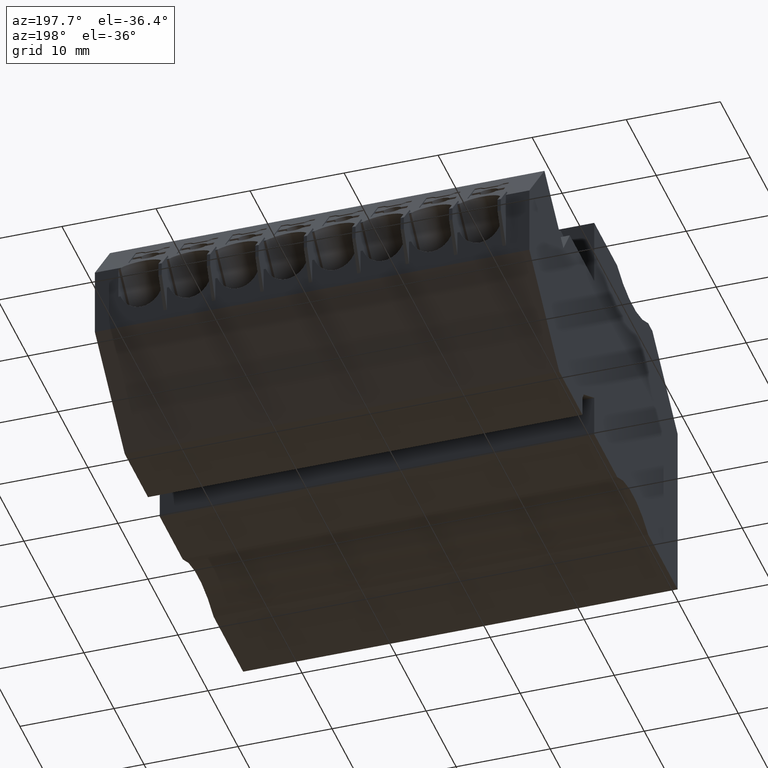
[diagram: clean part render]
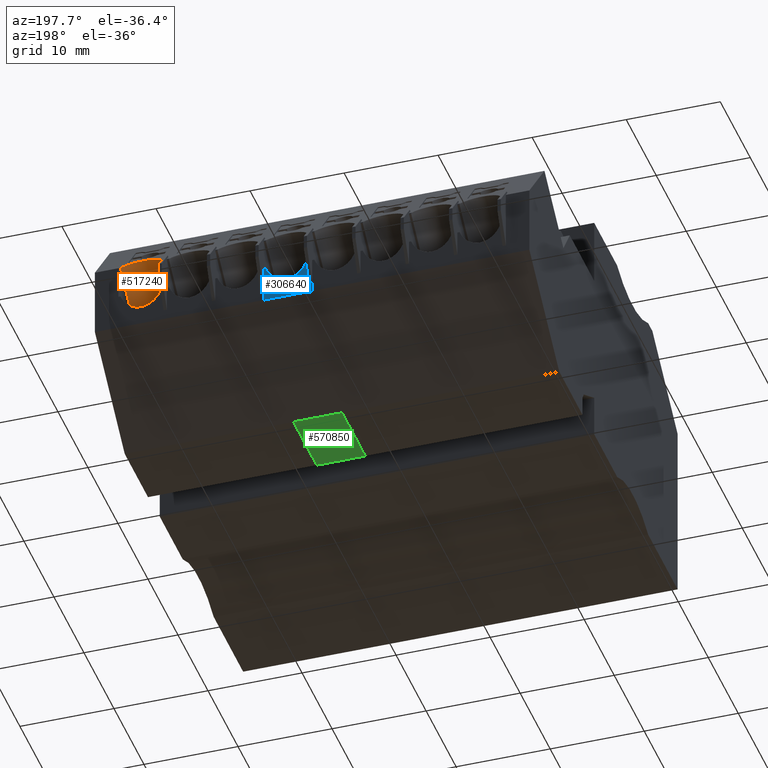
[diagram: same view with three faces highlighted in distinct colors, each labeled with its STEP entity id]
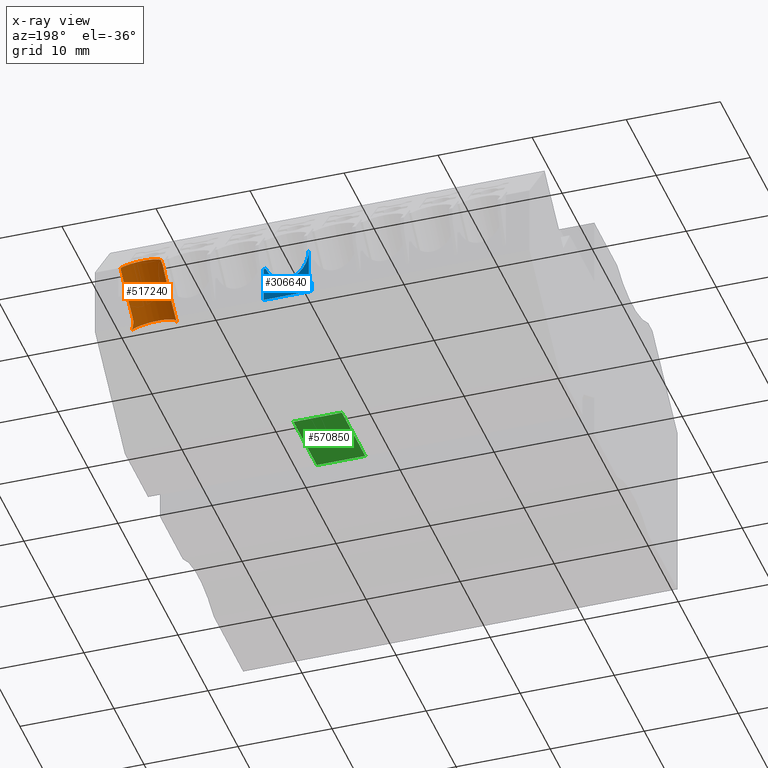
[diagram: x-ray of the same camera — body ghosted, the three highlighted faces saturated]
A machine part, auxiliary view with three faces highlighted in distinct colors.
The next image is the same camera in x-ray (body ghosted, the three faces saturated) — at least one of them is partly hidden behind the body in this view.
Their STEP definitions:

[orange] entity #517240 — the highlighted cylindrical surface (edge-blend (fillet) strip) has radius 2.4 mm, axis along (-0, -0.766, -0.6428).
#213950=CARTESIAN_POINT('',(469.853158772773,686.448039207543,
104.797257720839));
#213960=VERTEX_POINT('',#213950);
#213990=CARTESIAN_POINT('',(470.572956144025,685.590218103947,
106.919999979944));
#214000=DIRECTION('',(-0.766044443609541,-0.642787609101909,
4.36973645764363E-10));
#214010=DIRECTION('',(-0.642787609101909,0.766044443609542,
-3.23562025759873E-10));
#214020=AXIS2_PLACEMENT_3D('',#213990,#214000,#214010);
#214030=CIRCLE('',#214020,2.40000000000534);
#214040=CARTESIAN_POINT('',(469.853158772674,686.448039209318,
109.042742238297));
#214050=VERTEX_POINT('',#214040);
#214060=EDGE_CURVE('',#214050,#213960,#214030,.T.);
#244950=CARTESIAN_POINT('',(467.092890171759,684.014665542837,
109.087740740596));
#244960=DIRECTION('',(-0.766044443609541,-0.642787609101909,
4.36973645764363E-10));
#244970=VECTOR('',#244960,1.);
#244980=LINE('',#244950,#244970);
#244990=CARTESIAN_POINT('',(469.853158772521,686.330805904065,
109.087740739022));
#245000=VERTEX_POINT('',#244990);
#245010=CARTESIAN_POINT('',(465.743894971929,682.882724169986,
109.087740741354));
#245020=VERTEX_POINT('',#245010);
#245030=EDGE_CURVE('',#245000,#245020,#244980,.T.);
#281810=CARTESIAN_POINT('',(464.396383041171,680.407457899573,
106.919999983416));
#281820=DIRECTION('',(0.766044443617047,0.642787609092964,
-4.36836570012142E-10));
#281830=DIRECTION('',(-0.64278760909295,0.766044443617064,
-3.23765527076768E-10));
#281840=AXIS2_PLACEMENT_3D('',#281810,#281820,#281830);
#281850=CONICAL_SURFACE('',#281840,1.4398990952349,0.523598775598288);
#464120=CARTESIAN_POINT('',(466.42114118545,682.106431698036,
109.419999981394));
#464130=DIRECTION('',(-2.80146045982863E-10,-5.85936008036318E-10,-1.));
#464140=DIRECTION('',(0.642787609095202,-0.766044443615169,
2.68778915406435E-10));
#464150=AXIS2_PLACEMENT_3D('',#464120,#464130,#464140);
#464160=CYLINDRICAL_SURFACE('',#464150,1.030190485256);
#464170=CARTESIAN_POINT('',(467.754961408907,683.225639764715,
106.919999981551));
#464180=DIRECTION('',(-0.766044443609543,-0.642787609101911,
4.36973645764364E-10));
#464190=DIRECTION('',(-0.642787609101911,0.766044443609544,
-3.23562025759874E-10));
#464200=AXIS2_PLACEMENT_3D('',#464170,#464180,#464190);
#464210=CYLINDRICAL_SURFACE('',#464200,2.40000000000534);
#464220=CARTESIAN_POINT('',(465.743894971929,682.882724169987,
109.087740741354));
#464230=CARTESIAN_POINT('',(465.733728207156,682.873854570972,
109.087864012428));
#464240=CARTESIAN_POINT('',(465.723750200214,682.864797746441,
109.088113082004));
#464250=CARTESIAN_POINT('',(465.713972001915,682.855567321011,
109.088485667793));
#464260=CARTESIAN_POINT('',(465.704199147334,682.846341939945,
109.088858049967));
#464270=CARTESIAN_POINT('',(465.694604769445,682.836923686184,
109.089354449609));
#464280=CARTESIAN_POINT('',(465.685183533552,682.827305314131,
109.089974469727));
#464290=CARTESIAN_POINT('',(465.666343759506,682.808071324214,
109.091214332421));
#464300=CARTESIAN_POINT('',(465.648223432893,682.788060741876,
109.092948848292));
#464310=CARTESIAN_POINT('',(465.630918061213,682.767370310711,
109.095152591251));
#464320=CARTESIAN_POINT('',(465.613612831993,682.746680049873,
109.097356316069));
#464330=CARTESIAN_POINT('',(465.597125116398,682.725312847451,
109.100028840885));
#464340=CARTESIAN_POINT('',(465.581534302419,682.70338455866,
109.103123492074));
#464350=CARTESIAN_POINT('',(465.565943441984,682.681456204527,
109.106218152484));
#464360=CARTESIAN_POINT('',(465.55125143248,682.658969697822,
109.109734257482));
#464370=CARTESIAN_POINT('',(465.537514450315,682.636050644853,
109.113608009978));
#464380=CARTESIAN_POINT('',(465.530646010778,682.624591204369,
109.115544871691));
#464390=CARTESIAN_POINT('',(465.524016099454,682.613023978936,
109.117570869905));
#464400=CARTESIAN_POINT('',(465.517629410692,682.601364934709,
109.119676893044));
#464410=CARTESIAN_POINT('',(465.511243612672,682.589707516551,
109.121782622459));
#464420=CARTESIAN_POINT('',(465.505101000703,682.577960227706,
109.123967796765));
#464430=CARTESIAN_POINT('',(465.499176143506,682.566076014153,
109.126235353396));
#464440=CARTESIAN_POINT('',(465.487330847281,682.542316449109,
109.130768775741));
#464450=CARTESIAN_POINT('',(465.476399701899,682.518087739902,
109.135617794183));
#464460=CARTESIAN_POINT('',(465.466425777142,682.493485861009,
109.140714398695));
#464470=CARTESIAN_POINT('',(465.456451900145,682.468884099921,
109.145810978802));
#464480=CARTESIAN_POINT('',(465.447435964976,682.44391081162,
109.151154606471));
#464490=CARTESIAN_POINT('',(465.439408023254,682.418669482753,
109.156670033721));
#464500=CARTESIAN_POINT('',(465.43138007145,682.393428122186,
109.162185467898));
#464510=CARTESIAN_POINT('',(465.424340589368,682.367920304862,
109.167872143493));
#464520=CARTESIAN_POINT('',(465.418304646563,682.342252206593,
109.173651713742));
#464530=CARTESIAN_POINT('',(465.412266422104,682.316574405492,
109.179433468733));
#464540=CARTESIAN_POINT('',(465.407239446429,682.290779853169,
109.185298066584));
#464550=CARTESIAN_POINT('',(465.403204308529,682.264851869112,
109.191195636584));
#464560=CARTESIAN_POINT('',(465.399165436076,682.238899888498,
109.197098664833));
#464570=CARTESIAN_POINT('',(465.396110727838,682.21273335,
109.203053291101));
#464580=CARTESIAN_POINT('',(465.394062990505,682.186449305364,
109.208984895443));
#464590=CARTESIAN_POINT('',(465.392015261195,682.160165363728,
109.21491647654));
#464600=CARTESIAN_POINT('',(465.390974673753,682.133765303392,
109.220824560842));
#464610=CARTESIAN_POINT('',(465.390951110046,682.107350700906,
109.226635417984));
#464620=CARTESIAN_POINT('',(465.390927546313,682.080936069259,
109.23244628154));
#464630=CARTESIAN_POINT('',(465.391921009374,682.054508377321,
109.238159447492));
#464640=CARTESIAN_POINT('',(465.393927742859,682.028169450482,
109.243705352795));
#464650=CARTESIAN_POINT('',(465.395934719275,682.001827335113,
109.249251929472));
#464660=CARTESIAN_POINT('',(465.398953033203,681.975588654542,
109.254628176613));
#464670=CARTESIAN_POINT('',(465.402971754528,681.949513101404,
109.259779070784));
#464680=CARTESIAN_POINT('',(465.406993880923,681.923415454401,
109.264934329316));
#464690=CARTESIAN_POINT('',(465.412036733025,681.897369677964,
109.269885706934));
#464700=CARTESIAN_POINT('',(465.418097481898,681.871493908825,
109.274567388576));
#464710=CARTESIAN_POINT('',(465.424158214579,681.845618208814,
109.27924905771));
#464720=CARTESIAN_POINT('',(465.431236396112,681.819914748967,
109.28366047351));
#464730=CARTESIAN_POINT('',(465.439310236021,681.794501541147,
109.287744344041));
#464740=CARTESIAN_POINT('',(465.447384117867,681.769088201323,
109.291828235784));
#464750=CARTESIAN_POINT('',(465.456452858071,681.743967458812,
109.295584113308));
#464760=CARTESIAN_POINT('',(465.46647757327,681.719249798134,
109.298966345033));
#464770=B_SPLINE_CURVE_WITH_KNOTS('',3,(#464220,#464230,#464240,#464250,
#464260,#464270,#464280,#464290,#464300,#464310,#464320,#464330,#464340,
#464350,#464360,#464370,#464380,#464390,#464400,#464410,#464420,#464430,
#464440,#464450,#464460,#464470,#464480,#464490,#464500,#464510,#464520,
#464530,#464540,#464550,#464560,#464570,#464580,#464590,#464600,#464610,
#464620,#464630,#464640,#464650,#464660,#464670,#464680,#464690,#464700,
#464710,#464720,#464730,#464740,#464750,#464760),.UNSPECIFIED.,.F.,.F.,(
4,3,3,3,3,3,3,3,3,3,3,3,3,3,3,3,3,3,4),(0.,0.0404189289107439,
0.0807920273016124,0.161834032942967,0.243077001978238,0.32422683781065,
0.364669004795785,0.405030638602536,0.485993291710387,0.567143228697407,
0.648238819222331,0.729045233551824,0.80997751701114,0.891100341142666,
0.972174763870472,1.05298427384281,1.1338409150178,1.21480330436631,
1.29561422931445),.UNSPECIFIED.);
#464780=SURFACE_CURVE('',#464770,(#464210,#464160),.CURVE_3D.);
#464790=CARTESIAN_POINT('',(465.466477573293,681.719249798076,
109.298966345041));
#464800=VERTEX_POINT('',#464790);
#464810=EDGE_CURVE('',#245020,#464800,#464780,.T.);
#507490=CARTESIAN_POINT('',(469.853158770717,684.986236393453,
104.519999980361));
#507500=VERTEX_POINT('',#507490);
#507530=CARTESIAN_POINT('',(469.853158770505,684.98623639424,
106.919999980354));
#507540=DIRECTION('',(-1.,1.34569982934711E-9,9.53016587669485E-11));
#507550=DIRECTION('',(-1.3456997738356E-9,-1.,5.66234217872408E-10));
#507560=AXIS2_PLACEMENT_3D('',#507530,#507540,#507550);
#507570=ELLIPSE('',#507560,3.13297749593582,2.40000000000534);
#507580=EDGE_CURVE('',#213960,#507500,#507570,.T.);
#515140=ORIENTED_EDGE('',*,*,#464810,.T.);
#515150=ORIENTED_EDGE('',*,*,#245030,.T.);
#515160=EDGE_CURVE('',#245000,#214050,#507570,.T.);
#515170=ORIENTED_EDGE('',*,*,#515160,.F.);
#515180=ORIENTED_EDGE('',*,*,#214060,.F.);
#515190=ORIENTED_EDGE('',*,*,#507580,.F.);
#515200=CARTESIAN_POINT('',(467.754961408579,683.225639763475,
104.519999981546));
#515210=DIRECTION('',(-0.766044443609542,-0.64278760910191,
4.36973645764364E-10));
#515220=VECTOR('',#515210,1.);
#515230=LINE('',#515200,#515220);
#515240=CARTESIAN_POINT('',(465.670271705414,681.476377405141,
104.519999982753));
#515250=VERTEX_POINT('',#515240);
#515260=EDGE_CURVE('',#507500,#515250,#515230,.T.);
#515270=ORIENTED_EDGE('',*,*,#515260,.F.);
#515280=CARTESIAN_POINT('',(465.670271705345,681.476377405211,
104.519999982735));
#515290=CARTESIAN_POINT('',(465.644124575646,681.507538341011,
104.519999982724));
#515300=CARTESIAN_POINT('',(465.617935382899,681.5387494056,
104.521034810444));
#515310=CARTESIAN_POINT('',(465.591754537893,681.56995052174,
104.52311051377));
#515320=CARTESIAN_POINT('',(465.565573743175,681.601151577948,
104.525186213108));
#515330=CARTESIAN_POINT('',(465.539401690819,681.632342215417,
104.528302785745));
#515340=CARTESIAN_POINT('',(465.51328996556,681.663460957851,
104.532458050533));
#515350=CARTESIAN_POINT('',(465.48717825511,681.694579682638,
104.536613312966));
#515360=CARTESIAN_POINT('',(465.461127271872,681.725626035551,
104.541807212466));
#515370=CARTESIAN_POINT('',(465.435188476863,681.75653868774,
104.548029170957));
#515380=CARTESIAN_POINT('',(465.409249662053,681.787451363526,
104.554251134197));
#515390=CARTESIAN_POINT('',(465.383423430715,681.818229867557,
104.561501049982));
#515400=CARTESIAN_POINT('',(465.357759858712,681.84881452174,
104.569760220377));
#515410=CARTESIAN_POINT('',(465.33209623217,681.879399240921,
104.578019408324));
#515420=CARTESIAN_POINT('',(465.306595645046,681.90978965729,
104.587287695861));
#515430=CARTESIAN_POINT('',(465.281305561461,681.939929205311,
104.597538988807));
#515440=CARTESIAN_POINT('',(465.256015387558,681.970068860969,
104.607790318364));
#515450=CARTESIAN_POINT('',(465.230936071468,681.999957226069,
104.619024454118));
#515460=CARTESIAN_POINT('',(465.206111276283,682.029542264969,
104.631209093433));
#515470=CARTESIAN_POINT('',(465.156541810877,682.088616853552,
104.655539044697));
#515480=CARTESIAN_POINT('',(465.107626014051,682.146912430259,
104.683832557094));
#515490=CARTESIAN_POINT('',(465.059555279814,682.204200900592,
104.716072032828));
#515500=CARTESIAN_POINT('',(465.035527716453,682.232835835602,
104.732186536969));
#515510=CARTESIAN_POINT('',(465.011728545766,682.261198582822,
104.749276321019));
#515520=CARTESIAN_POINT('',(464.988205684049,682.289232037836,
104.767314847798));
#515530=CARTESIAN_POINT('',(464.964682860261,682.317265447647,
104.785353345491));
#515540=CARTESIAN_POINT('',(464.941436708054,682.344969133107,
104.80434033493));
#515550=CARTESIAN_POINT('',(464.918513897949,682.372287474457,
104.824241087168));
#515560=CARTESIAN_POINT('',(464.895591094001,682.399605808468,
104.844141834061));
#515570=CARTESIAN_POINT('',(464.872991984639,682.426538378294,
104.864956042372));
#515580=CARTESIAN_POINT('',(464.850760788136,682.453032486649,
104.886641502261));
#515590=CARTESIAN_POINT('',(464.828529567974,682.479526623199,
104.908326985227));
#515600=CARTESIAN_POINT('',(464.806666593941,682.505581901102,
104.930883375757));
#515610=CARTESIAN_POINT('',(464.785212568581,682.531149812954,
104.954262082082));
#515620=CARTESIAN_POINT('',(464.763758490866,682.556717787201,
104.977640845458));
#515630=CARTESIAN_POINT('',(464.742713667117,682.581798031565,
105.001841547053));
#515640=CARTESIAN_POINT('',(464.722114364149,682.606347324935,
105.026810705681));
#515650=CARTESIAN_POINT('',(464.701514980593,682.630896714348,
105.051779961993));
#515660=CARTESIAN_POINT('',(464.681361386368,682.654914832722,
105.077517275094));
#515670=CARTESIAN_POINT('',(464.661684644825,682.678364660201,
105.103966177374));
#515680=CARTESIAN_POINT('',(464.642020376232,682.701799622995,
105.130398313877));
#515690=CARTESIAN_POINT('',(464.622744957793,682.724771172221,
105.157658041129));
#515700=CARTESIAN_POINT('',(464.60388650056,682.747245806433,
105.185723158255));
#515710=CARTESIAN_POINT('',(464.585029064463,682.769719223702,
105.213786755729));
#515720=CARTESIAN_POINT('',(464.566593098783,682.791690352087,
105.242649561429));
#515730=CARTESIAN_POINT('',(464.548617916439,682.813112340276,
105.272264417343));
#515740=CARTESIAN_POINT('',(464.533376551193,682.831276292109,
105.297375196588));
#515750=CARTESIAN_POINT('',(464.518466601165,682.849045278665,
105.32302629643));
#515760=CARTESIAN_POINT('',(464.50391080465,682.866392201499,
105.349184551894));
#515770=CARTESIAN_POINT('',(464.489355021737,682.883739108123,
105.375342782916));
#515780=CARTESIAN_POINT('',(464.475153511487,682.900663809027,
105.40200797073));
#515790=CARTESIAN_POINT('',(464.461327327651,682.91714121333,
105.429143469425));
#515800=CARTESIAN_POINT('',(464.447501147013,682.933618613821,
105.456278961842));
#515810=CARTESIAN_POINT('',(464.434050403812,682.949648585397,
105.483884551233));
#515820=CARTESIAN_POINT('',(464.42099405525,682.965208535745,
105.511920716419));
#515830=CARTESIAN_POINT('',(464.407937700619,682.980768493326,
105.539956894637));
#515840=CARTESIAN_POINT('',(464.395275841468,682.995858309502,
105.568423423624));
#515850=CARTESIAN_POINT('',(464.383025011325,683.010458280379,
105.59727861383));
#515860=CARTESIAN_POINT('',(464.370774166791,683.025058268407,
105.626133837932));
#515870=CARTESIAN_POINT('',(464.358934440043,683.039168305336,
105.655377491312));
#515880=CARTESIAN_POINT('',(464.347519698747,683.052771864326,
105.684966525308));
#515890=CARTESIAN_POINT('',(464.336104935552,683.066375449413,
105.714555616069));
#515900=CARTESIAN_POINT('',(464.325115232773,683.079472467222,
105.744489853182));
#515910=CARTESIAN_POINT('',(464.314561637726,683.092049752076,
105.774725743589));
#515920=CARTESIAN_POINT('',(464.304007639902,683.104627516939,
105.804962787943));
#515930=CARTESIAN_POINT('',(464.293891333304,683.116683661711,
105.83549654858));
#515940=CARTESIAN_POINT('',(464.284216634821,683.128213518425,
105.866297558263));
#515950=CARTESIAN_POINT('',(464.274537041284,683.139749208837,
105.897114152164));
#515960=CARTESIAN_POINT('',(464.265262683894,683.150801957614,
105.928315985675));
#515970=CARTESIAN_POINT('',(464.256410269842,683.161351853902,
105.959866163262));
#515980=CARTESIAN_POINT('',(464.247557878627,683.171901722974,
105.991416259459));
#515990=CARTESIAN_POINT('',(464.239127511338,683.181948643516,
106.023314481597));
#516000=CARTESIAN_POINT('',(464.231134328439,683.191474547989,
106.055520136749));
#516010=CARTESIAN_POINT('',(464.223141159874,683.201000435381,
106.087725734151));
#516020=CARTESIAN_POINT('',(464.215585248025,683.210005220508,
106.120238526498));
#516030=CARTESIAN_POINT('',(464.208479740727,683.218473234395,
106.153014730563));
#516040=CARTESIAN_POINT('',(464.201374240934,683.226941239337,
106.185790900005));
#516050=CARTESIAN_POINT('',(464.19471920819,683.234872398554,
106.218830228288));
#516060=CARTESIAN_POINT('',(464.188525423285,683.242253864001,
106.252086596982));
#516070=CARTESIAN_POINT('',(464.18233164055,683.249635326863,
106.28534295403));
#516080=CARTESIAN_POINT('',(464.176599157099,683.256467034645,
106.318816088739));
#516090=CARTESIAN_POINT('',(464.171336138746,683.262739255709,
106.352458346132));
#516100=CARTESIAN_POINT('',(464.166073118573,683.269011478942,
106.386100615155));
#516110=CARTESIAN_POINT('',(464.161279602933,683.27472416846,
106.419911739113));
#516120=CARTESIAN_POINT('',(464.156960998347,683.279870881023,
106.453843367604));
#516130=CARTESIAN_POINT('',(464.152642389219,683.285017598999,
106.487775031787));
#516140=CARTESIAN_POINT('',(464.148798717838,683.289598308208,
106.521826932741));
#516150=CARTESIAN_POINT('',(464.145432590587,683.293609902482,
106.555950909077));
#516160=CARTESIAN_POINT('',(464.142066457305,683.297621503945,
106.590074946561));
#516170=CARTESIAN_POINT('',(464.139177881629,683.301063974416,
106.624270796433));
#516180=CARTESIAN_POINT('',(464.136766735151,683.303937466922,
106.658491416308));
#516190=CARTESIAN_POINT('',(464.134355582481,683.306810966808,
106.692712124084));
#516200=CARTESIAN_POINT('',(464.132421858947,683.309115488805,
106.726957349648));
#516210=CARTESIAN_POINT('',(464.13096287897,683.310854233462,
106.76118214132));
#516220=CARTESIAN_POINT('',(464.129504673119,683.312592055552,
106.795388773554));
#516230=CARTESIAN_POINT('',(464.128515046773,683.313771446331,
106.829703939687));
#516240=CARTESIAN_POINT('',(464.127999935152,683.314385332483,
106.864101420538));
#516250=CARTESIAN_POINT('',(464.127484846071,683.314999191773,
106.898497396304));
#516260=CARTESIAN_POINT('',(464.127444505887,683.315047267357,
106.932969349469));
#516270=CARTESIAN_POINT('',(464.127883248629,683.314524394142,
106.967471013634));
#516280=CARTESIAN_POINT('',(464.128321990527,683.314001521933,
107.001972611445));
#516290=CARTESIAN_POINT('',(464.129239825279,683.312907689095,
107.036503659092));
#516300=CARTESIAN_POINT('',(464.130638499328,683.311240814295,
107.071016087951));
#516310=CARTESIAN_POINT('',(464.132037171728,683.30957394146,
107.105528476113));
#516320=CARTESIAN_POINT('',(464.133916680627,683.30733403,
107.140021975614));
#516330=CARTESIAN_POINT('',(464.136276025816,683.304522271916,
107.174447628855));
#516340=CARTESIAN_POINT('',(464.138635369898,683.301710515151,
107.208873265944));
#516350=CARTESIAN_POINT('',(464.141474534795,683.298326930206,
107.243230783533));
#516360=CARTESIAN_POINT('',(464.144789724404,683.294376041099,
107.277471224666));
#516370=CARTESIAN_POINT('',(464.148104914766,683.290425151095,
107.311711673572));
#516380=CARTESIAN_POINT('',(464.151896101971,683.28590699014,
107.34583477452));
#516390=CARTESIAN_POINT('',(464.156156751208,683.280829346123,
107.379792437705));
#516400=CARTESIAN_POINT('',(464.160417404407,683.275751697385,
107.413750132469));
#516410=CARTESIAN_POINT('',(464.165147479894,683.270114612946,
107.447542124731));
#516420=CARTESIAN_POINT('',(464.170337867312,683.26392895011,
107.481122036192));
#516430=CARTESIAN_POINT('',(464.175528263345,683.257743277006,
107.514702003394));
#516440=CARTESIAN_POINT('',(464.181178920464,683.251009086098,
107.548069636924));
#516450=CARTESIAN_POINT('',(464.187278424362,683.24373998043,
107.581181092012));
#516460=CARTESIAN_POINT('',(464.193377943119,683.236470857051,
107.614292627772));
#516470=CARTESIAN_POINT('',(464.199926247788,683.22866689145,
107.647147749419));
#516480=CARTESIAN_POINT('',(464.206910005085,683.220343973614,
107.679705942602));
#516490=CARTESIAN_POINT('',(464.213890444796,683.212025009522,
107.71224866924));
#516500=CARTESIAN_POINT('',(464.221313578092,683.203178463758,
107.744537194581));
#516510=CARTESIAN_POINT('',(464.229205648673,683.1937730603,
107.776668405812));
#516520=CARTESIAN_POINT('',(464.237094926685,683.184370984897,
107.808788247574));
#516530=CARTESIAN_POINT('',(464.245442101417,683.174423209431,
107.840701243727));
#516540=CARTESIAN_POINT('',(464.254240194952,683.163938049861,
107.872362222149));
#516550=CARTESIAN_POINT('',(464.263038270409,683.153452911836,
107.904023135515));
#516560=CARTESIAN_POINT('',(464.272287211629,683.142430452916,
107.9354317848));
#516570=CARTESIAN_POINT('',(464.281977202916,683.130882370994,
107.966542717424));
#516580=CARTESIAN_POINT('',(464.291667181576,683.11933430412,
107.997653609509));
#516590=CARTESIAN_POINT('',(464.301798143144,683.10726069428,
108.028466537294));
#516600=CARTESIAN_POINT('',(464.312357496794,683.094676546637,
108.058936721023));
#516610=CARTESIAN_POINT('',(464.322916844228,683.082092406401,
108.089406886816));
#516620=CARTESIAN_POINT('',(464.33390450381,683.068997823623,
108.119534064602));
#516630=CARTESIAN_POINT('',(464.34530526854,683.0554109213,
108.149275012616));
#516640=CARTESIAN_POINT('',(464.356706034507,683.041824017503,
108.179015963856));
#516650=CARTESIAN_POINT('',(464.368519814411,683.027744902861,
108.208370449652));
#516660=CARTESIAN_POINT('',(464.38072903682,683.013194518193,
108.237297545895));
#516670=CARTESIAN_POINT('',(464.392938269103,682.998644121757,
108.266224665535));
#516680=CARTESIAN_POINT('',(464.405542843088,682.983622575427,
108.294724172582));
#516690=CARTESIAN_POINT('',(464.418523166801,682.968153228007,
108.322758156232));
#516700=CARTESIAN_POINT('',(464.433831746003,682.949909173743,
108.355820541156));
#516710=CARTESIAN_POINT('',(464.449662822784,682.931042431112,
108.388234879007));
#516720=CARTESIAN_POINT('',(464.465981523452,682.911594560959,
108.419945607112));
#516730=CARTESIAN_POINT('',(464.482300288725,682.892146613814,
108.451656460756));
#516740=CARTESIAN_POINT('',(464.499106417196,682.872117849824,
108.482663293518));
#516750=CARTESIAN_POINT('',(464.516363218005,682.851551995456,
108.512918703679));
#516760=CARTESIAN_POINT('',(464.53361186125,682.830995862893,
108.543159811627));
#516770=CARTESIAN_POINT('',(464.551391059146,682.809807439919,
108.572791299948));
#516780=CARTESIAN_POINT('',(464.569680064732,682.788011451797,
108.601759231465));
#516790=CARTESIAN_POINT('',(464.587968592834,682.766216032717,
108.630726406696));
#516800=CARTESIAN_POINT('',(464.606765027325,682.743815314373,
108.659026724314));
#516810=CARTESIAN_POINT('',(464.626038440422,682.720846155061,
108.686599660422));
#516820=CARTESIAN_POINT('',(464.645311802378,682.697877056695,
108.714172523366));
#516830=CARTESIAN_POINT('',(464.665061875489,682.674339836097,
108.741017567861));
#516840=CARTESIAN_POINT('',(464.685252835966,682.650277186395,
108.767077981281));
#516850=CARTESIAN_POINT('',(464.705443770877,682.626214567162,
108.793138361702));
#516860=CARTESIAN_POINT('',(464.72607529408,682.601626875247,
108.818413700246));
#516870=CARTESIAN_POINT('',(464.747107452479,682.576561724896,
108.842852610171));
#516880=CARTESIAN_POINT('',(464.768139612343,682.5514965728,
108.867291521797));
#516890=CARTESIAN_POINT('',(464.789572084638,682.525954346924,
108.890893631068));
#516900=CARTESIAN_POINT('',(464.811361728384,682.499986460688,
108.913614327281));
#516910=CARTESIAN_POINT('',(464.833151402816,682.474018537881,
108.936335055493));
#516920=CARTESIAN_POINT('',(464.855297910553,682.4476253577,
108.958174043596));
#516930=CARTESIAN_POINT('',(464.877756036777,682.420860805066,
108.979094449752));
#516940=CARTESIAN_POINT('',(464.900214225975,682.394096177384,
109.00001491457));
#516950=CARTESIAN_POINT('',(464.922983689187,682.366960587774,
109.0200165258));
#516960=CARTESIAN_POINT('',(464.946018428752,682.339508854118,
109.039070839206));
#516970=CARTESIAN_POINT('',(464.969057109861,682.312052423112,
109.058128413053));
#516980=CARTESIAN_POINT('',(464.992343784639,682.284300444759,
109.076225672321));
#516990=CARTESIAN_POINT('',(465.015881661761,682.256249095109,
109.093378417225));
#517000=CARTESIAN_POINT('',(465.039438477241,682.228175175602,
109.11054496307));
#517010=CARTESIAN_POINT('',(465.063329645675,682.19970278976,
109.126824190687));
#517020=CARTESIAN_POINT('',(465.087515157699,682.170879618888,
109.142174926925));
#517030=CARTESIAN_POINT('',(465.111700577861,682.14205655749,
109.157525604858));
#517040=CARTESIAN_POINT('',(465.136180011324,682.112883104684,
109.171947519968));
#517050=CARTESIAN_POINT('',(465.160909024788,682.083412214014,
109.185404671002));
#517060=CARTESIAN_POINT('',(465.185637980506,682.053941392164,
109.198861790612));
#517070=CARTESIAN_POINT('',(465.210616155213,682.024173562686,
109.211353912413));
#517080=CARTESIAN_POINT('',(465.235795764652,681.994165672642,
109.222851686164));
#517090=CARTESIAN_POINT('',(465.260975349816,681.964157811528,
109.23434944883));
#517100=CARTESIAN_POINT('',(465.286355988266,681.933910344437,
109.244852674127));
#517110=CARTESIAN_POINT('',(465.3118876932,681.903482843319,
109.254339684951));
#517120=CARTESIAN_POINT('',(465.337419407522,681.873055331014,
109.263826699263));
#517130=CARTESIAN_POINT('',(465.363101796442,681.842448251714,
109.27229735918));
#517140=CARTESIAN_POINT('',(465.388883889517,681.811722349629,
109.279738244909));
#517150=CARTESIAN_POINT('',(465.414666026795,681.780996394864,
109.287179143395));
#517160=CARTESIAN_POINT('',(465.440547476013,681.750152084737,
109.293590180771));
#517170=CARTESIAN_POINT('',(465.466477573206,681.71924979821,
109.298966345019));
#517180=B_SPLINE_CURVE_WITH_KNOTS('',3,(#515280,#515290,#515300,#515310,
#515320,#515330,#515340,#515350,#515360,#515370,#515380,#515390,#515400,
#515410,#515420,#515430,#515440,#515450,#515460,#515470,#515480,#515490,
#515500,#515510,#515520,#515530,#515540,#515550,#515560,#515570,#515580,
#515590,#515600,#515610,#515620,#515630,#515640,#515650,#515660,#515670,
#515680,#515690,#515700,#515710,#515720,#515730,#515740,#515750,#515760,
#515770,#515780,#515790,#515800,#515810,#515820,#515830,#515840,#515850,
#515860,#515870,#515880,#515890,#515900,#515910,#515920,#515930,#515940,
#515950,#515960,#515970,#515980,#515990,#516000,#516010,#516020,#516030,
#516040,#516050,#516060,#516070,#516080,#516090,#516100,#516110,#516120,
#516130,#516140,#516150,#516160,#516170,#516180,#516190,#516200,#516210,
#516220,#516230,#516240,#516250,#516260,#516270,#516280,#516290,#516300,
#516310,#516320,#516330,#516340,#516350,#516360,#516370,#516380,#516390,
#516400,#516410,#516420,#516430,#516440,#516450,#516460,#516470,#516480,
#516490,#516500,#516510,#516520,#516530,#516540,#516550,#516560,#516570,
#516580,#516590,#516600,#516610,#516620,#516630,#516640,#516650,#516660,
#516670,#516680,#516690,#516700,#516710,#516720,#516730,#516740,#516750,
#516760,#516770,#516780,#516790,#516800,#516810,#516820,#516830,#516840,
#516850,#516860,#516870,#516880,#516890,#516900,#516910,#516920,#516930,
#516940,#516950,#516960,#516970,#516980,#516990,#517000,#517010,#517020,
#517030,#517040,#517050,#517060,#517070,#517080,#517090,#517100,#517110,
#517120,#517130,#517140,#517150,#517160,#517170),.UNSPECIFIED.,.F.,.F.,(
4,3,3,3,3,3,3,3,3,3,3,3,3,3,3,3,3,3,3,3,3,3,3,3,3,3,3,3,3,3,3,3,3,3,3,3,
3,3,3,3,3,3,3,3,3,3,3,3,3,3,3,3,3,3,3,3,3,3,3,3,3,3,3,4),(0.,
0.122203827168953,0.244643683680671,0.367155009576426,0.489570317433279,
0.611726063434774,0.733469789630093,0.976855834598201,1.09912651185758,
1.22159692389103,1.34410125355431,1.46647229798375,1.58854835941975,
1.71018051254204,1.83172309231357,1.95372969733785,2.05744011235412,
2.16128579393785,2.26516552030058,2.36897707313297,2.47262023845376,
2.57599990714567,2.6790322551107,2.78212474343688,2.88555388876026,
2.9892314019414,3.09306111438274,3.19694227475194,3.3007726229566,
3.40445138889755,3.50788236551351,3.61097720367031,3.71400756760383,
3.81738531176447,3.92102712244826,4.02483793251696,4.12871755002177,
4.23256375982561,4.33627532461169,4.43975503473243,4.54291295507413,
4.64590060427865,4.74922442366617,4.85282776305565,4.95661675370205,
5.06049185277189,5.16435097688732,5.26809250973921,5.39015720826352,
5.51177376216976,5.63332985869804,5.75534849957136,5.87768542954035,
6.0001803859014,6.12266654771519,6.24497745309596,6.36695394133604,
6.48846742121659,6.61013736331596,6.73224073374185,6.8546273894615,
6.97713497958436,7.09959616857851,7.22184551789153),.UNSPECIFIED.);
#517190=SURFACE_CURVE('',#517180,(#464210,#281850),.CURVE_3D.);
#517200=EDGE_CURVE('',#515250,#464800,#517190,.T.);
#517210=ORIENTED_EDGE('',*,*,#517200,.F.);
#517220=EDGE_LOOP('',(#517210,#515270,#515190,#515180,#515170,#515150,
#515140));
#517230=FACE_OUTER_BOUND('',#517220,.T.);
#517240=ADVANCED_FACE('',(#517230),#464210,.F.);

[blue] entity #306640 — the highlighted planar face has unit normal (0, 1, 0).
#24740=CARTESIAN_POINT('',(469.853158763758,677.735392965184,
68.119999991504));
#24750=DIRECTION('',(1.,-1.20455928570415E-9,-9.53020388786053E-11));
#24760=DIRECTION('',(-1.2045592856499E-9,-1.,5.69281613977681E-10));
#24770=AXIS2_PLACEMENT_3D('',#24740,#24750,#24760);
#24780=PLANE('',#24770);
#24790=CARTESIAN_POINT('',(469.853158765259,678.981362835314,
68.1199999778021));
#24800=DIRECTION('',(9.53020393934754E-11,4.27434416588531E-10,1.));
#24810=VECTOR('',#24800,1.);
#24820=LINE('',#24790,#24810);
#27190=CARTESIAN_POINT('',(469.853158767222,678.981362844119,
88.7199999917637));
#27200=VERTEX_POINT('',#27190);
#71930=CARTESIAN_POINT('',(469.853158771781,684.202992009744,
89.0699999807623));
#71940=VERTEX_POINT('',#71930);
#72590=CARTESIAN_POINT('',(469.853158766239,680.084428451295,
89.0699999829433));
#72600=VERTEX_POINT('',#72590);
#72630=CARTESIAN_POINT('',(469.853158803695,707.918603555902,
89.0699999682813));
#72640=DIRECTION('',(-1.34569977383562E-9,-1.,5.2676273327318E-10));
#72650=VECTOR('',#72640,1.);
#72660=LINE('',#72630,#72650);
#72670=EDGE_CURVE('',#71940,#72600,#72660,.T.);
#236890=CARTESIAN_POINT('',(469.853158802079,707.918603554015,
88.719999974825));
#236900=DIRECTION('',(-1.20455923013874E-9,-1.,5.85356141199929E-10));
#236910=VECTOR('',#236900,1.);
#236920=LINE('',#236890,#236910);
#236930=CARTESIAN_POINT('',(469.853158768551,680.084428461232,
88.7199999911179));
#236940=VERTEX_POINT('',#236930);
#236950=EDGE_CURVE('',#236940,#27200,#236920,.T.);
#275760=CARTESIAN_POINT('',(469.853158767713,678.98136284632,
93.8699999916465));
#275770=VERTEX_POINT('',#275760);
#276140=CARTESIAN_POINT('',(469.853158765647,680.084428454772,
93.8699999910007));
#276150=VERTEX_POINT('',#276140);
#276180=CARTESIAN_POINT('',(469.853158802569,707.91860355848,
93.8699999747077));
#276190=DIRECTION('',(1.20455923013874E-9,1.,-5.85356141199929E-10));
#276200=VECTOR('',#276190,1.);
#276210=LINE('',#276180,#276200);
#276220=EDGE_CURVE('',#275770,#276150,#276210,.T.);
#289680=CARTESIAN_POINT('',(469.853158770429,682.858422503469,
93.8699999893769));
#289690=VERTEX_POINT('',#289680);
#289720=EDGE_CURVE('',#276150,#289690,#276210,.T.);
#306350=EDGE_CURVE('',#27200,#275770,#24820,.T.);
#306360=ORIENTED_EDGE('',*,*,#306350,.F.);
#306370=ORIENTED_EDGE('',*,*,#276220,.F.);
#306380=ORIENTED_EDGE('',*,*,#289720,.F.);
#306390=CARTESIAN_POINT('',(469.853158769938,682.85842250125,
88.719999995198));
#306400=DIRECTION('',(-9.53019266711848E-11,-4.30833375936485E-10,-1.));
#306410=VECTOR('',#306400,1.);
#306420=LINE('',#306390,#306410);
#306430=CARTESIAN_POINT('',(469.853158770407,682.858422503369,
93.6377407408919));
#306440=VERTEX_POINT('',#306430);
#306450=EDGE_CURVE('',#289690,#306440,#306420,.T.);
#306460=ORIENTED_EDGE('',*,*,#306450,.F.);
#306470=CARTESIAN_POINT('',(469.85315877201,684.202992010939,
91.4699999807677));
#306480=DIRECTION('',(-1.,1.34569982934711E-9,9.53016587669485E-11));
#306490=DIRECTION('',(-1.3456997738356E-9,-1.,5.66234217872958E-10));
#306500=AXIS2_PLACEMENT_3D('',#306470,#306480,#306490);
#306510=ELLIPSE('',#306500,3.1329774959167,2.40000000000534);
#306520=EDGE_CURVE('',#71940,#306440,#306510,.T.);
#306530=ORIENTED_EDGE('',*,*,#306520,.T.);
#306540=ORIENTED_EDGE('',*,*,#72670,.F.);
#306550=CARTESIAN_POINT('',(469.853158766205,680.084428451096,
88.7199999968788));
#306560=DIRECTION('',(-9.53019268574946E-11,-5.69281532136888E-10,-1.));
#306570=VECTOR('',#306560,1.);
#306580=LINE('',#306550,#306570);
#306590=EDGE_CURVE('',#72600,#236940,#306580,.T.);
#306600=ORIENTED_EDGE('',*,*,#306590,.F.);
#306610=ORIENTED_EDGE('',*,*,#236950,.F.);
#306620=EDGE_LOOP('',(#306610,#306600,#306540,#306530,#306460,#306380,
#306370,#306360));
#306630=FACE_OUTER_BOUND('',#306620,.T.);
#306640=ADVANCED_FACE('',(#306630),#24780,.T.);

[green] entity #570850 — the highlighted planar face has unit normal (0, 0, -1).
#7480=CARTESIAN_POINT('',(432.124069231659,670.634347625639,
68.1199999952488));
#7490=DIRECTION('',(-1.20456572490157E-9,-1.,5.82229711732946E-10));
#7500=DIRECTION('',(1.,-1.20456572494379E-9,-7.2511997674725E-11));
#7510=AXIS2_PLACEMENT_3D('',#7480,#7490,#7500);
#7520=PLANE('',#7510);
#7670=CARTESIAN_POINT('',(452.153158756575,670.634347613506,
88.7199999980519));
#7680=VERTEX_POINT('',#7670);
#7710=CARTESIAN_POINT('',(436.268902532367,670.63434763264,
88.7199999993105));
#7720=DIRECTION('',(-1.,1.20456572494379E-9,7.92260575924475E-11));
#7730=VECTOR('',#7720,1.);
#7740=LINE('',#7710,#7730);
#7750=CARTESIAN_POINT('',(459.905573344541,670.634347604168,
88.7199999974378));
#7760=VERTEX_POINT('',#7750);
#7770=EDGE_CURVE('',#7760,#7680,#7740,.T.);
#123110=CARTESIAN_POINT('',(452.153158757055,670.634347616505,
93.8699999979347));
#123120=VERTEX_POINT('',#123110);
#123450=CARTESIAN_POINT('',(459.905573337582,670.634347607166,
93.8699999973205));
#123460=VERTEX_POINT('',#123450);
#123490=CARTESIAN_POINT('',(436.268902531636,670.634347635638,
93.8699999991932));
#123500=DIRECTION('',(1.,-1.20456572494379E-9,-7.92260575924475E-11));
#123510=VECTOR('',#123500,1.);
#123520=LINE('',#123490,#123510);
#123530=EDGE_CURVE('',#123120,#123460,#123520,.T.);
#357960=CARTESIAN_POINT('',(452.153158752393,670.634347607852,
93.8699999771138));
#357970=DIRECTION('',(1.64639387953552E-10,5.03691111828967E-10,1.));
#357980=VECTOR('',#357970,1.);
#357990=LINE('',#357960,#357980);
#358000=CARTESIAN_POINT('',(452.153158751982,670.634347606593,
91.3699999837046));
#358010=VERTEX_POINT('',#358000);
#358020=EDGE_CURVE('',#358010,#123120,#357990,.T.);
#358040=CARTESIAN_POINT('',(452.153158752938,670.634347607151,
88.7199999996734));
#358050=DIRECTION('',(9.73617497942318E-11,5.56333266454329E-10,1.));
#358060=VECTOR('',#358050,1.);
#358070=LINE('',#358040,#358060);
#358080=EDGE_CURVE('',#7680,#358010,#358070,.T.);
#397920=CARTESIAN_POINT('',(459.905573338435,670.634347596719,
88.7200000009573));
#397930=DIRECTION('',(2.48917491584714E-10,5.5633326625038E-10,1.));
#397940=VECTOR('',#397930,1.);
#397950=LINE('',#397920,#397940);
#397960=CARTESIAN_POINT('',(459.905573333145,670.634347598193,
91.3699999818239));
#397970=VERTEX_POINT('',#397960);
#397980=EDGE_CURVE('',#7760,#397970,#397950,.T.);
#398000=CARTESIAN_POINT('',(459.905573331333,670.634347597195,
93.8699999745711));
#398010=DIRECTION('',(-3.51177059947896E-10,-5.0369111157255E-10,-1.));
#398020=VECTOR('',#398010,1.);
#398030=LINE('',#398000,#398020);
#398040=EDGE_CURVE('',#123460,#397970,#398030,.T.);
#570770=ORIENTED_EDGE('',*,*,#358080,.F.);
#570780=ORIENTED_EDGE('',*,*,#358020,.F.);
#570790=ORIENTED_EDGE('',*,*,#123530,.F.);
#570800=ORIENTED_EDGE('',*,*,#398040,.F.);
#570810=ORIENTED_EDGE('',*,*,#397980,.T.);
#570820=ORIENTED_EDGE('',*,*,#7770,.F.);
#570830=EDGE_LOOP('',(#570820,#570810,#570800,#570790,#570780,#570770));
#570840=FACE_OUTER_BOUND('',#570830,.T.);
#570850=ADVANCED_FACE('',(#570840),#7520,.T.);